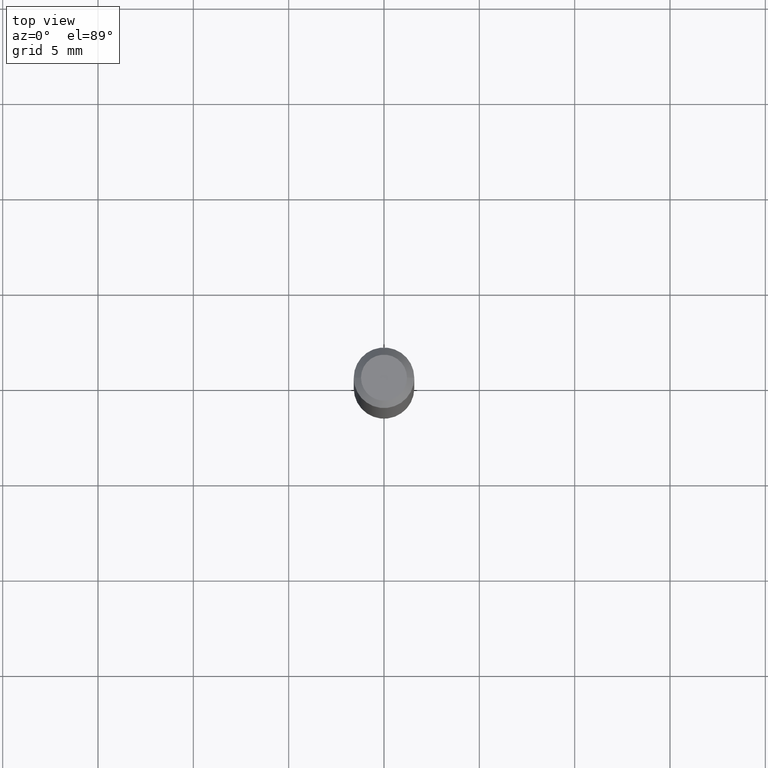
[diagram: clean part render]
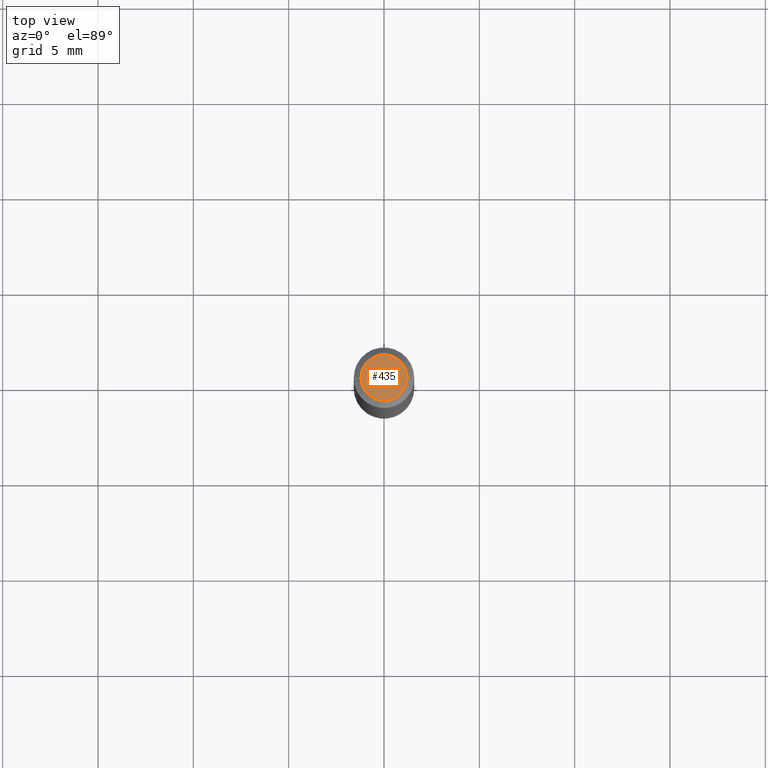
[diagram: same view with one face highlighted and labeled with its STEP entity id]
A machine part, top view. The second image highlights one B-rep face of the part: STEP entity #435.
In plain terms, the highlighted planar face has unit normal (0, -0, -1).
Its self-contained STEP definition (entity closure, byte-faithful):
#1 = CARTESIAN_POINT ( 'NONE',  ( -3.223020679335594837E-45, 4.601619341103081537E-31, 1.317956160873471783E-16 ) ) ;
#35 = CIRCLE ( 'NONE', #354, 0.04749999999999999362 ) ;
#146 = CARTESIAN_POINT ( 'NONE',  ( -3.223020679335594837E-45, 4.601619341103081537E-31, 1.317956160873471783E-16 ) ) ;
#173 = DIRECTION ( 'NONE',  ( -2.445468806185136597E-29, 3.491481338843145583E-15, 1.000000000000000000 ) ) ;
#183 = AXIS2_PLACEMENT_3D ( 'NONE', #464, #440, #434 ) ;
#184 = DIRECTION ( 'NONE',  ( 1.000000000000000000, -6.982962677686267499E-15, 4.884662768193073002E-29 ) ) ;
#240 = FACE_OUTER_BOUND ( 'NONE', #277, .T. ) ;
#246 = DIRECTION ( 'NONE',  ( -2.445468806185136597E-29, 3.491481338843145583E-15, 1.000000000000000000 ) ) ;
#265 = VERTEX_POINT ( 'NONE', #338 ) ;
#277 = EDGE_LOOP ( 'NONE', ( #393, #312 ) ) ;
#287 = PLANE ( 'NONE',  #183 ) ;
#305 = CARTESIAN_POINT ( 'NONE',  ( 0.04749999999999999362, -4.035134999187576158E-16, 1.317956160873497667E-16 ) ) ;
#309 = VERTEX_POINT ( 'NONE', #305 ) ;
#312 = ORIENTED_EDGE ( 'NONE', *, *, #402, .T. ) ;
#329 = AXIS2_PLACEMENT_3D ( 'NONE', #1, #246, #184 ) ;
#338 = CARTESIAN_POINT ( 'NONE',  ( -0.04749999999999999362, 3.578768372314212971E-16, 1.317956160873447624E-16 ) ) ;
#354 = AXIS2_PLACEMENT_3D ( 'NONE', #146, #173, #403 ) ;
#369 = EDGE_CURVE ( 'NONE', #265, #309, #451, .T. ) ;
#393 = ORIENTED_EDGE ( 'NONE', *, *, #369, .T. ) ;
#402 = EDGE_CURVE ( 'NONE', #309, #265, #35, .T. ) ;
#403 = DIRECTION ( 'NONE',  ( 1.000000000000000000, -6.982962677686267499E-15, 4.884662768193073002E-29 ) ) ;
#434 = DIRECTION ( 'NONE',  ( -1.000000000000000000, 6.982962677686265922E-15, -4.876176775795935793E-29 ) ) ;
#435 = ADVANCED_FACE ( 'NONE', ( #240 ), #287, .F. ) ;
#440 = DIRECTION ( 'NONE',  ( 2.438088387897960049E-29, -3.491481338843145188E-15, -1.000000000000000000 ) ) ;
#451 = CIRCLE ( 'NONE', #329, 0.04749999999999999362 ) ;
#464 = CARTESIAN_POINT ( 'NONE',  ( 3.316907271900976096E-16, 0.04749999999999999362, -9.994755555137580731E-17 ) ) ;